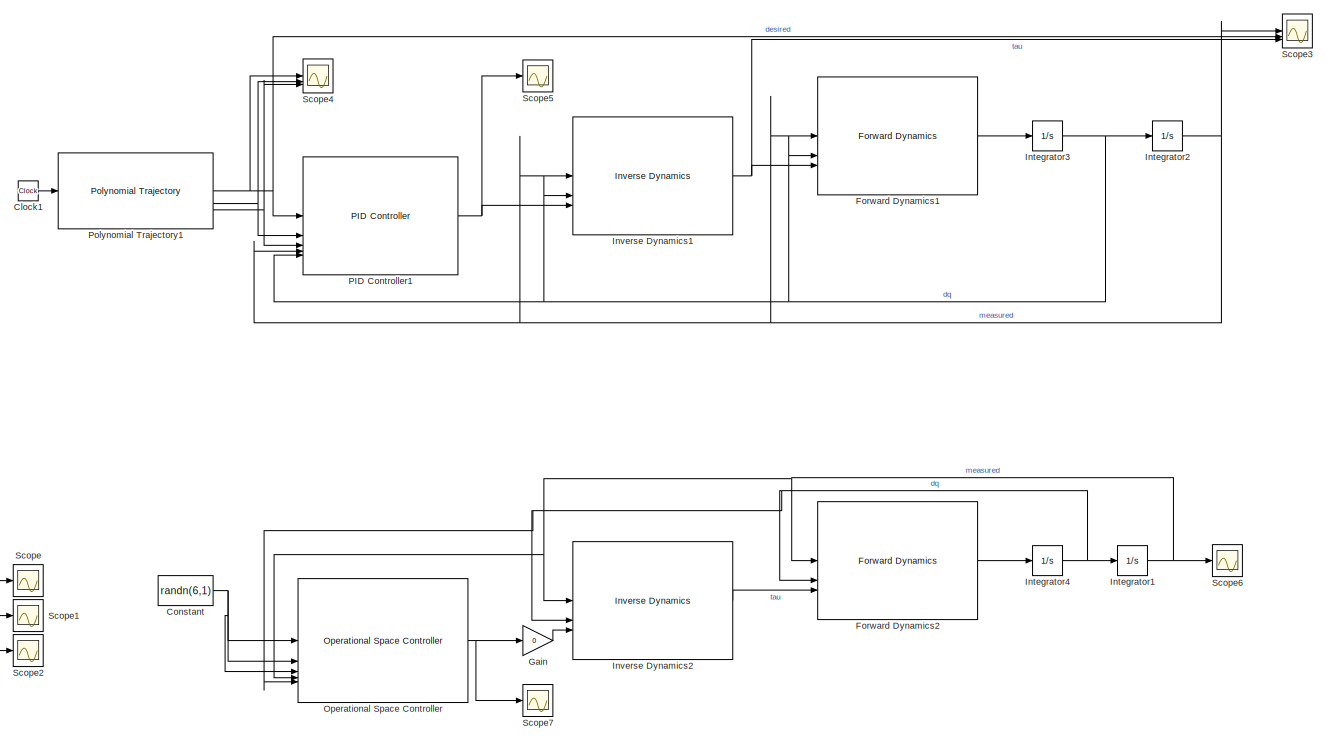
[diagram: root canvas - part 1/3, full width, middle band]
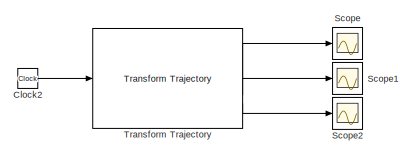
[diagram: root canvas - part 2/3, middle left region]
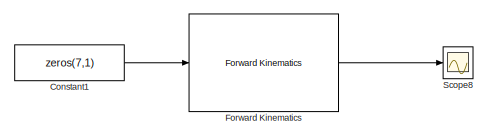
[diagram: root canvas - part 3/3, bottom left region]
MODEL slx_97b63c768b9c
KIND model
CONFIG AbsTol = auto
CONFIG EnableMultiTasking = off
CONFIG FixedStep = dt
CONFIG MaxStep = auto
CONFIG MinStep = auto
CONFIG RelTol = 1e-3
CONFIG SampleTimeConstraint = Unconstrained
CONFIG SolverName = ode1
CONFIG StartTime = 0.0
CONFIG StopTime = 10
WORKSPACE source: mxarray member
WORKSPACE dt = 0.001
BLOCK [Reference]  Inverse Dynamics1  REF=sdu_controllers/Dynamics/Inverse Dynamics
  Commented = on
  SourceBlock = sdu_controllers/Dynamics/Inverse Dynamics
  SourceType = inverse_dynamics
BLOCK [Reference]  Inverse Dynamics2  REF=sdu_controllers/Dynamics/Inverse Dynamics
  Commented = on
  SourceBlock = sdu_controllers/Dynamics/Inverse Dynamics
  SourceType = inverse_dynamics
BLOCK [Clock] Clock1
  Commented = on
BLOCK [Clock] Clock2
  Commented = on
BLOCK [Constant] Constant
  Commented = on
  Value = randn(6,1)
BLOCK [Constant] Constant1
  Value = zeros(7,1)
BLOCK [Reference] Forward Dynamics1  REF=sdu_controllers/Dynamics/Forward Dynamics
  Commented = on
  SourceBlock = sdu_controllers/Dynamics/Forward Dynamics
  SourceType = forward_dynamics
BLOCK [Reference] Forward Dynamics2  REF=sdu_controllers/Dynamics/Forward Dynamics
  Commented = on
  SourceBlock = sdu_controllers/Dynamics/Forward Dynamics
  SourceType = forward_dynamics
BLOCK [Reference] Forward Kinematics  REF=sdu_controllers/Kinematics/Forward Kinematics
  SourceBlock = sdu_controllers/Kinematics/Forward Kinematics
  SourceType = kinematics.forward_kinematics
BLOCK [Gain] Gain
  Commented = on
  Gain = 0
BLOCK [Integrator] Integrator1
  Commented = on
  InitialCondition = zeros(7,1)
BLOCK [Integrator] Integrator2
  Commented = on
  InitialCondition = [0;-pi/2;-pi/2;-pi/2;pi/2;0; 0]
BLOCK [Integrator] Integrator3
  Commented = on
  InitialCondition = zeros(7,1)
BLOCK [Integrator] Integrator4
  Commented = on
  InitialCondition = zeros(7,1)
BLOCK [Reference] Operational Space Controller  REF=sdu_controllers/Controllers/Operational Space Controller
  Commented = on
  SourceBlock = sdu_controllers/Controllers/Operational Space Controller
  SourceType = cartesian_space_control.operational_space_controller
BLOCK [Reference] PID Controller1  REF=sdu_controllers/Controllers/PID Controller
  Commented = on
  SourceBlock = sdu_controllers/Controllers/PID Controller
  SourceType = pid_controller
BLOCK [Reference] Polynomial Trajectory1  REF=robotcorelib/Polynomial Trajectory
  Commented = on
  LibrarySourceBlock = robotutilslib/Polynomial Trajectory
  SourceBlock = robotcorelib/Polynomial Trajectory
  SourceType = robotics.slcore.internal.block.PolyTrajSys
BLOCK [Scope] Scope
  Commented = on
  Floating = off
  NumInputPorts = 1
  ScopeSpecificationString = Simulink.scopes.TimeScopeBlockCfg('CurrentConfiguration', extmgr.ConfigurationSet(extmgr.Configuration('Core','General UI',true),extmgr.Configuration('Core','Source UI',true),extmgr.Configuration('Sources','WiredSimulink',true,'DataLoggingVariableName','ScopeData1'),extmgr.Configuration('Visuals','Time Domain',true),extmgr.Configuration('Tools','Plot Navigation',true),extmgr.Configuration('Tools',...<+40ch>
BLOCK [Scope] Scope1
  Commented = on
  Floating = off
  NumInputPorts = 1
  ScopeSpecificationString = Simulink.scopes.TimeScopeBlockCfg('CurrentConfiguration', extmgr.ConfigurationSet(extmgr.Configuration('Core','General UI',true),extmgr.Configuration('Core','Source UI',true),extmgr.Configuration('Sources','WiredSimulink',true,'DataLoggingVariableName','ScopeData2'),extmgr.Configuration('Visuals','Time Domain',true),extmgr.Configuration('Tools','Plot Navigation',true),extmgr.Configuration('Tools',...<+40ch>
BLOCK [Scope] Scope2
  Commented = on
  Floating = off
  NumInputPorts = 1
  ScopeSpecificationString = Simulink.scopes.TimeScopeBlockCfg('CurrentConfiguration', extmgr.ConfigurationSet(extmgr.Configuration('Core','General UI',true),extmgr.Configuration('Core','Source UI',true),extmgr.Configuration('Sources','WiredSimulink',true,'DataLoggingVariableName','ScopeData3'),extmgr.Configuration('Visuals','Time Domain',true),extmgr.Configuration('Tools','Plot Navigation',true),extmgr.Configuration('Tools',...<+40ch>
BLOCK [Scope] Scope3
  Commented = on
  Floating = off
  NumInputPorts = 3
  ScopeSpecificationString = Simulink.scopes.TimeScopeBlockCfg('CurrentConfiguration', extmgr.ConfigurationSet(extmgr.Configuration('Core','General UI',true),extmgr.Configuration('Core','Source UI',true),extmgr.Configuration('Sources','WiredSimulink',true,'DataLoggingVariableName','ScopeData3'),extmgr.Configuration('Visuals','Time Domain',true,'SerializedDisplays',{struct('MinYLimReal','-2.5811','MaxYLimReal','2.28592','YLabe...<+3523ch>
BLOCK [Scope] Scope4
  Commented = on
  Floating = off
  NumInputPorts = 3
  ScopeSpecificationString = Simulink.scopes.TimeScopeBlockCfg('CurrentConfiguration', extmgr.ConfigurationSet(extmgr.Configuration('Core','General UI',true),extmgr.Configuration('Core','Source UI',true),extmgr.Configuration('Sources','WiredSimulink',true,'DataLoggingVariableName','ScopeData4'),extmgr.Configuration('Visuals','Time Domain',true,'SerializedDisplays',{struct('MinYLimReal','-2.60619','MaxYLimReal','2.5118','YLabe...<+3474ch>
BLOCK [Scope] Scope5
  Commented = on
  Floating = off
  NumInputPorts = 1
  ScopeSpecificationString = Simulink.scopes.TimeScopeBlockCfg('CurrentConfiguration', extmgr.ConfigurationSet(extmgr.Configuration('Core','General UI',true),extmgr.Configuration('Core','Source UI',true),extmgr.Configuration('Sources','WiredSimulink',true,'DataLoggingVariableName','ScopeData5'),extmgr.Configuration('Visuals','Time Domain',true,'SerializedDisplays',{struct('MinYLimReal','-0.04232','MaxYLimReal','0.04232','YLab...<+1565ch>
BLOCK [Scope] Scope6
  Commented = on
  Floating = off
  NumInputPorts = 1
  ScopeSpecificationString = Simulink.scopes.TimeScopeBlockCfg('CurrentConfiguration', extmgr.ConfigurationSet(extmgr.Configuration('Core','General UI',true),extmgr.Configuration('Core','Source UI',true),extmgr.Configuration('Sources','WiredSimulink',true,'DataLoggingVariableName','ScopeData4'),extmgr.Configuration('Visuals','Time Domain',true,'SerializedDisplays',{struct('MinYLimReal','-1.00000','MaxYLimReal','1.00000','YLab...<+1536ch>
BLOCK [Scope] Scope7
  Commented = on
  Floating = off
  NumInputPorts = 1
  ScopeSpecificationString = Simulink.scopes.TimeScopeBlockCfg('CurrentConfiguration', extmgr.ConfigurationSet(extmgr.Configuration('Core','General UI',true),extmgr.Configuration('Core','Source UI',true),extmgr.Configuration('Sources','WiredSimulink',true,'DataLoggingVariableName','ScopeData5'),extmgr.Configuration('Visuals','Time Domain',true,'SerializedDisplays',{struct('MinYLimReal','-10.00000','MaxYLimReal','10.00000','YL...<+1682ch>
BLOCK [Scope] Scope8
  Floating = off
  NumInputPorts = 1
  ScopeSpecificationString = Simulink.scopes.TimeScopeBlockCfg('CurrentConfiguration', extmgr.ConfigurationSet(extmgr.Configuration('Core','General UI',true),extmgr.Configuration('Core','Source UI',true),extmgr.Configuration('Sources','WiredSimulink',true,'DataLoggingVariableName','ScopeData6'),extmgr.Configuration('Visuals','Time Domain',true,'SerializedDisplays',{struct('MinYLimReal','-1.25','MaxYLimReal','1.25','YLabelReal...<+1830ch>
BLOCK [Reference] Transform Trajectory  REF=robotcorelib/Transform Trajectory
  Commented = on
  LibrarySourceBlock = robotutilslib/Transform Trajectory
  SourceBlock = robotcorelib/Transform Trajectory
  SourceType = robotics.slcore.internal.block.TransformTrajSys
NET  Inverse Dynamics1:1 -> Forward Dynamics1:3, Scope3:3
LINE  Inverse Dynamics2:1 -> Forward Dynamics2:3
LINE Clock1:1 -> Polynomial Trajectory1:1
LINE Clock2:1 -> Transform Trajectory:1
LINE Constant1:1 -> Forward Kinematics:1
NET Constant:1 -> Operational Space Controller:1, Operational Space Controller:2, Operational Space Controller:3
LINE Forward Dynamics1:1 -> Integrator3:1
LINE Forward Dynamics2:1 -> Integrator4:1
LINE Forward Kinematics:1 -> Scope8:1
LINE Gain:1 ->  Inverse Dynamics2:3
NET Integrator1:1 ->  Inverse Dynamics2:1, Forward Dynamics2:1, Operational Space Controller:4, Scope6:1
NET Integrator2:1 ->  Inverse Dynamics1:1, Forward Dynamics1:1, PID Controller1:4, Scope3:1
NET Integrator3:1 ->  Inverse Dynamics1:2, Forward Dynamics1:2, Integrator2:1, PID Controller1:5
NET Integrator4:1 ->  Inverse Dynamics2:2, Forward Dynamics2:2, Integrator1:1, Operational Space Controller:5
NET Operational Space Controller:1 -> Gain:1, Scope7:1
NET PID Controller1:1 ->  Inverse Dynamics1:3, Scope5:1
NET Polynomial Trajectory1:1 -> PID Controller1:1, Scope3:2, Scope4:1
NET Polynomial Trajectory1:2 -> PID Controller1:2, Scope4:2
NET Polynomial Trajectory1:3 -> PID Controller1:3, Scope4:3
LINE Transform Trajectory:1 -> Scope:1
LINE Transform Trajectory:2 -> Scope1:1
LINE Transform Trajectory:3 -> Scope2:1
note: NET lines group one-source signal fan-out (src -> all destinations, sorted); 1:1 wires keep LINE
